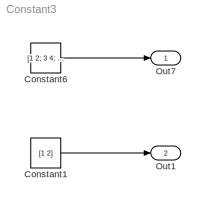
MODEL Constant3
KIND model
BLOCK [Constant] Constant1
  OutDataTypeStr = double
  SID = 3
  Value = [1 2]
BLOCK [Constant] Constant6
  OutDataTypeStr = double
  SID = 1
  Value = [1 2; 3 4; 5 6]
BLOCK [Outport] Out1
  IconDisplay = Port number
  Port = 2
  SID = 4
BLOCK [Outport] Out7
  IconDisplay = Port number
  SID = 2
LINE Constant1:1 -> Out1:1
LINE Constant6:1 -> Out7:1
